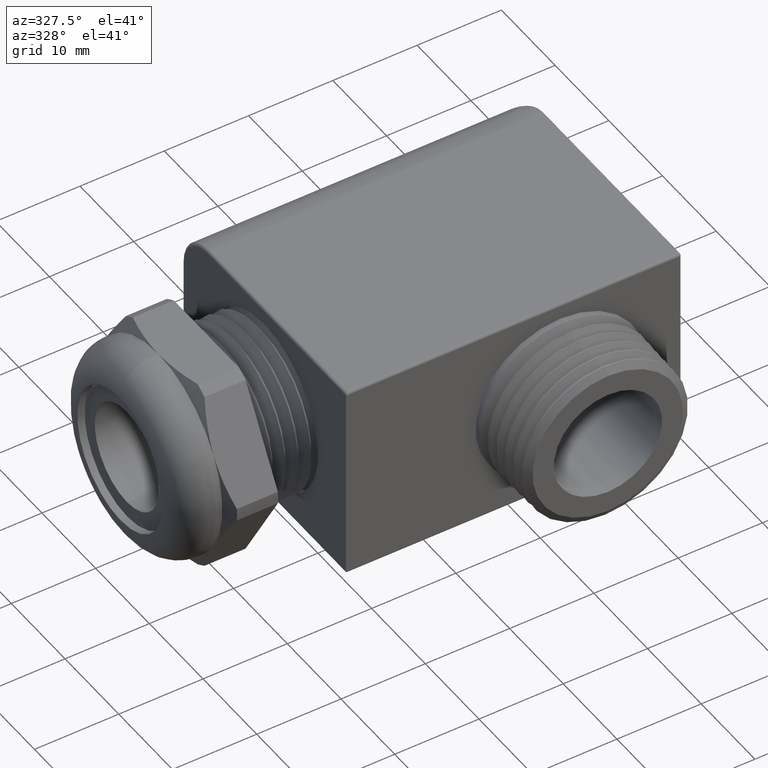
[diagram: clean part render]
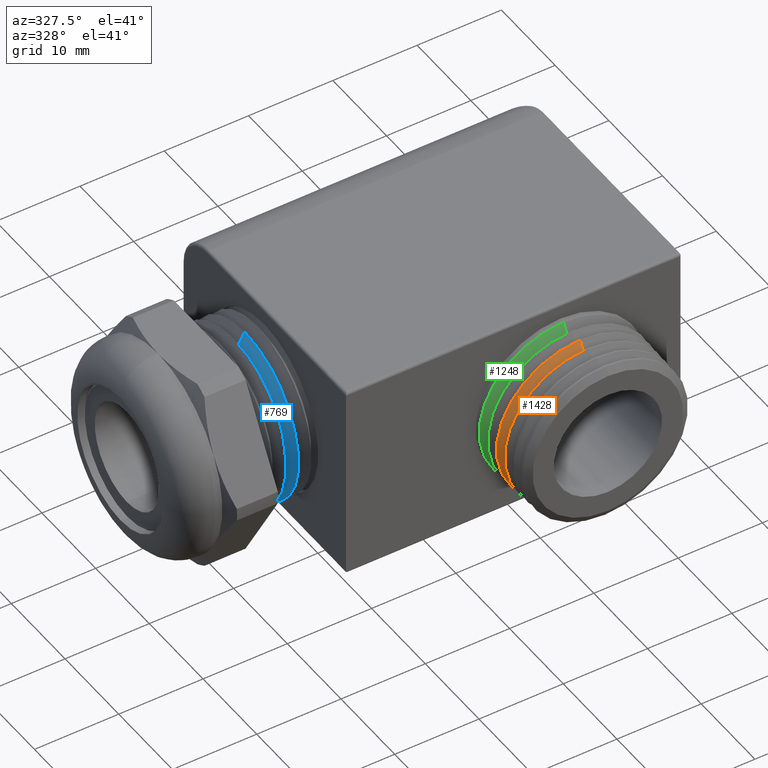
[diagram: same view with three faces highlighted in distinct colors, each labeled with its STEP entity id]
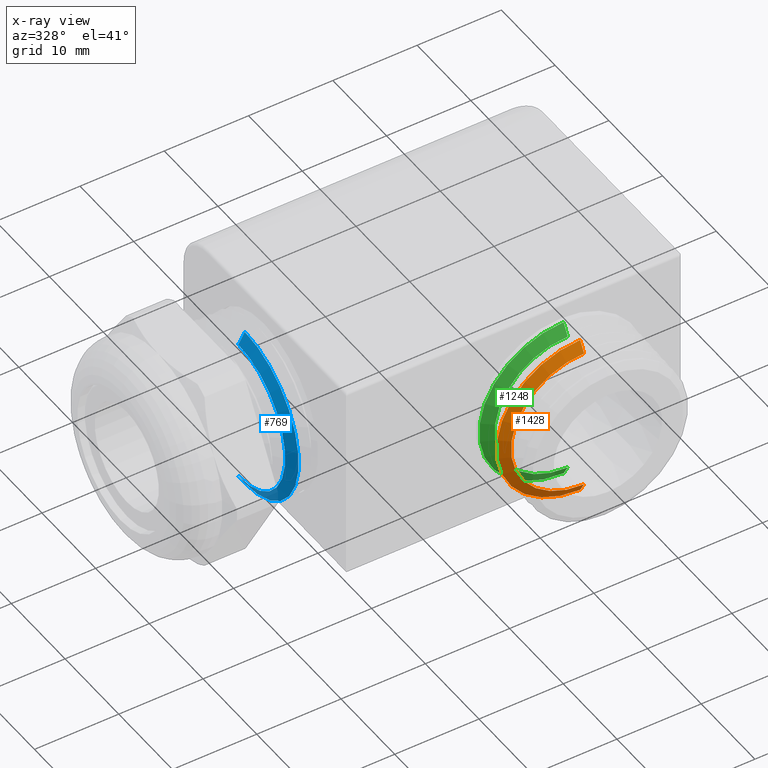
[diagram: x-ray of the same camera — body ghosted, the three highlighted faces saturated]
A machine part, auxiliary view with three faces highlighted in distinct colors.
The next image is the same camera in x-ray (body ghosted, the three faces saturated) — at least one of them is partly hidden behind the body in this view.
Their STEP definitions:

[orange] entity #1428 — the highlighted conical surface has half-angle 60 deg.
#813 = EDGE_CURVE ( 'NONE', #834, #817, #3018, .T. ) ;
#816 = VERTEX_POINT ( 'NONE', #3104 ) ;
#817 = VERTEX_POINT ( 'NONE', #3103 ) ;
#818 = VERTEX_POINT ( 'NONE', #3102 ) ;
#834 = VERTEX_POINT ( 'NONE', #3084 ) ;
#911 = EDGE_CURVE ( 'NONE', #817, #816, #3166, .T. ) ;
#967 = EDGE_CURVE ( 'NONE', #818, #816, #3322, .T. ) ;
#1408 = ORIENTED_EDGE ( 'NONE', *, *, #967, .F. ) ;
#1409 = ORIENTED_EDGE ( 'NONE', *, *, #1439, .T. ) ;
#1421 = EDGE_LOOP ( 'NONE', ( #1408, #1409, #1440, #1423 ) ) ;
#1423 = ORIENTED_EDGE ( 'NONE', *, *, #911, .T. ) ;
#1428 = ADVANCED_FACE ( 'NONE', ( #4010 ), #3979, .T. ) ;
#1439 = EDGE_CURVE ( 'NONE', #818, #834, #3969, .T. ) ;
#1440 = ORIENTED_EDGE ( 'NONE', *, *, #813, .T. ) ;
#3018 = LINE ( 'NONE', #3089, #3088 ) ;
#3084 = CARTESIAN_POINT ( 'NONE',  ( 1.000155367231638300, -0.7756709431788048100, 0.3415681302205366100 ) ) ;
#3088 = VECTOR ( 'NONE', #3105, 39.37007874015748100 ) ;
#3089 = CARTESIAN_POINT ( 'NONE',  ( 1.000155367231638300, -0.7756709431788048100, 0.3415681302205366100 ) ) ;
#3102 = CARTESIAN_POINT ( 'NONE',  ( 1.000155367231638300, -0.7756709431788048100, -0.3415681302205366100 ) ) ;
#3103 = CARTESIAN_POINT ( 'NONE',  ( 1.000155367231638300, -0.7470451331042969900, 0.3911494876774004300 ) ) ;
#3104 = CARTESIAN_POINT ( 'NONE',  ( 1.000155367231638600, -0.7470451331042969900, -0.3911494876774004300 ) ) ;
#3105 = DIRECTION ( 'NONE',  ( 0.0000000000000000000, 0.5000000000000045500, 0.8660254037844360400 ) ) ;
#3162 = DIRECTION ( 'NONE',  ( 0.0000000000000000000, 0.0000000000000000000, 1.000000000000000000 ) ) ;
#3163 = DIRECTION ( 'NONE',  ( 0.0000000000000000000, -1.000000000000000000, 0.0000000000000000000 ) ) ;
#3164 = CARTESIAN_POINT ( 'NONE',  ( 1.000155367231638300, -0.7470451331042969900, 0.0000000000000000000 ) ) ;
#3165 = AXIS2_PLACEMENT_3D ( 'NONE', #3164, #3163, #3162 ) ;
#3166 = CIRCLE ( 'NONE', #3165, 0.3911494876774004300 ) ;
#3322 = LINE ( 'NONE', #3392, #3391 ) ;
#3390 = DIRECTION ( 'NONE',  ( 1.060575238724903700E-016, 0.5000000000000045500, -0.8660254037844360400 ) ) ;
#3391 = VECTOR ( 'NONE', #3390, 39.37007874015748100 ) ;
#3392 = CARTESIAN_POINT ( 'NONE',  ( 1.000155367231638300, -0.7756709431788048100, -0.3415681302205366100 ) ) ;
#3965 = DIRECTION ( 'NONE',  ( 0.0000000000000000000, 0.0000000000000000000, 1.000000000000000000 ) ) ;
#3966 = DIRECTION ( 'NONE',  ( 0.0000000000000000000, 1.000000000000000000, 0.0000000000000000000 ) ) ;
#3967 = CARTESIAN_POINT ( 'NONE',  ( 1.000155367231638300, -0.7756709431788048100, 0.0000000000000000000 ) ) ;
#3968 = AXIS2_PLACEMENT_3D ( 'NONE', #3967, #3966, #3965 ) ;
#3969 = CIRCLE ( 'NONE', #3968, 0.3415681302205366100 ) ;
#3974 = DIRECTION ( 'NONE',  ( 0.0000000000000000000, 0.0000000000000000000, 1.000000000000000000 ) ) ;
#3975 = DIRECTION ( 'NONE',  ( 0.0000000000000000000, 1.000000000000000000, 0.0000000000000000000 ) ) ;
#3976 = CARTESIAN_POINT ( 'NONE',  ( 1.000155367231638300, -0.7756709431788048100, 0.0000000000000000000 ) ) ;
#3977 = AXIS2_PLACEMENT_3D ( 'NONE', #3976, #3975, #3974 ) ;
#3979 = CONICAL_SURFACE ( 'NONE', #3977, 0.3415681302205366100, 1.047197551196592500 ) ;
#4010 = FACE_OUTER_BOUND ( 'NONE', #1421, .T. ) ;

[blue] entity #769 — the highlighted conical surface has half-angle 60 deg.
#536 = ORIENTED_EDGE ( 'NONE', *, *, #770, .F. ) ;
#576 = VERTEX_POINT ( 'NONE', #2661 ) ;
#591 = EDGE_CURVE ( 'NONE', #804, #743, #2569, .T. ) ;
#691 = EDGE_CURVE ( 'NONE', #576, #804, #2799, .T. ) ;
#743 = VERTEX_POINT ( 'NONE', #2948 ) ;
#744 = VERTEX_POINT ( 'NONE', #2947 ) ;
#766 = ORIENTED_EDGE ( 'NONE', *, *, #691, .T. ) ;
#769 = ADVANCED_FACE ( 'NONE', ( #2795 ), #2794, .T. ) ;
#770 = EDGE_CURVE ( 'NONE', #576, #744, #2788, .T. ) ;
#773 = EDGE_LOOP ( 'NONE', ( #774, #536, #766, #775 ) ) ;
#774 = ORIENTED_EDGE ( 'NONE', *, *, #803, .F. ) ;
#775 = ORIENTED_EDGE ( 'NONE', *, *, #591, .T. ) ;
#803 = EDGE_CURVE ( 'NONE', #744, #743, #2869, .T. ) ;
#804 = VERTEX_POINT ( 'NONE', #2864 ) ;
#2566 = DIRECTION ( 'NONE',  ( 0.0000000000000000000, 0.0000000000000000000, 1.000000000000000000 ) ) ;
#2567 = DIRECTION ( 'NONE',  ( -1.000000000000000000, 0.0000000000000000000, 0.0000000000000000000 ) ) ;
#2568 = AXIS2_PLACEMENT_3D ( 'NONE', #2574, #2567, #2566 ) ;
#2569 = CIRCLE ( 'NONE', #2568, 0.3950000000000000200 ) ;
#2574 = CARTESIAN_POINT ( 'NONE',  ( -0.09095792271184900700, 0.0000000000000000000, 0.0000000000000000000 ) ) ;
#2661 = CARTESIAN_POINT ( 'NONE',  ( -0.1209579087243453500, 4.519182433362568700E-017, -0.3430385000000000200 ) ) ;
#2788 = CIRCLE ( 'NONE', #2793, 0.3430385000000000200 ) ;
#2789 = DIRECTION ( 'NONE',  ( 0.0000000000000000000, 0.0000000000000000000, -1.000000000000000000 ) ) ;
#2790 = DIRECTION ( 'NONE',  ( 1.000000000000000000, 0.0000000000000000000, 0.0000000000000000000 ) ) ;
#2791 = CARTESIAN_POINT ( 'NONE',  ( -0.1209579087243453500, 0.0000000000000000000, 0.0000000000000000000 ) ) ;
#2792 = AXIS2_PLACEMENT_3D ( 'NONE', #2791, #2790, #2789 ) ;
#2793 = AXIS2_PLACEMENT_3D ( 'NONE', #2907, #2906, #2905 ) ;
#2794 = CONICAL_SURFACE ( 'NONE', #2792, 0.3430385000000000200, 1.047197551196603200 ) ;
#2795 = FACE_OUTER_BOUND ( 'NONE', #773, .T. ) ;
#2799 = LINE ( 'NONE', #2805, #2843 ) ;
#2805 = CARTESIAN_POINT ( 'NONE',  ( -0.1209579087243453500, 0.0000000000000000000, -0.3430385000000000200 ) ) ;
#2842 = DIRECTION ( 'NONE',  ( 0.4999999999999952800, 0.0000000000000000000, -0.8660254037844412600 ) ) ;
#2843 = VECTOR ( 'NONE', #2842, 39.37007874015748100 ) ;
#2864 = CARTESIAN_POINT ( 'NONE',  ( -0.09095792271184900700, 4.837354856632045600E-017, -0.3950000000000000200 ) ) ;
#2866 = DIRECTION ( 'NONE',  ( 0.4999999999999952800, 1.060575238724910200E-016, 0.8660254037844412600 ) ) ;
#2867 = VECTOR ( 'NONE', #2866, 39.37007874015748100 ) ;
#2868 = CARTESIAN_POINT ( 'NONE',  ( -0.1209579087243453500, 4.201010010093093600E-017, 0.3430385000000000200 ) ) ;
#2869 = LINE ( 'NONE', #2868, #2867 ) ;
#2905 = DIRECTION ( 'NONE',  ( 0.0000000000000000000, 0.0000000000000000000, 1.000000000000000000 ) ) ;
#2906 = DIRECTION ( 'NONE',  ( -1.000000000000000000, 0.0000000000000000000, 0.0000000000000000000 ) ) ;
#2907 = CARTESIAN_POINT ( 'NONE',  ( -0.1209579087243453500, 0.0000000000000000000, 0.0000000000000000000 ) ) ;
#2947 = CARTESIAN_POINT ( 'NONE',  ( -0.1209579087243453500, 0.0000000000000000000, 0.3430385000000000200 ) ) ;
#2948 = CARTESIAN_POINT ( 'NONE',  ( -0.09095792271184900700, 0.0000000000000000000, 0.3950000000000000200 ) ) ;

[green] entity #1248 — the highlighted conical surface has half-angle 60 deg.
#821 = VERTEX_POINT ( 'NONE', #3192 ) ;
#823 = EDGE_CURVE ( 'NONE', #1075, #821, #3187, .T. ) ;
#1054 = EDGE_CURVE ( 'NONE', #1062, #1055, #3545, .T. ) ;
#1055 = VERTEX_POINT ( 'NONE', #3534 ) ;
#1062 = VERTEX_POINT ( 'NONE', #3553 ) ;
#1075 = VERTEX_POINT ( 'NONE', #3565 ) ;
#1248 = ADVANCED_FACE ( 'NONE', ( #3919 ), #3902, .T. ) ;
#1249 = EDGE_LOOP ( 'NONE', ( #1250, #1251, #1253, #1254 ) ) ;
#1250 = ORIENTED_EDGE ( 'NONE', *, *, #1054, .F. ) ;
#1251 = ORIENTED_EDGE ( 'NONE', *, *, #1252, .T. ) ;
#1252 = EDGE_CURVE ( 'NONE', #1062, #1075, #3754, .T. ) ;
#1253 = ORIENTED_EDGE ( 'NONE', *, *, #823, .T. ) ;
#1254 = ORIENTED_EDGE ( 'NONE', *, *, #1363, .F. ) ;
#1363 = EDGE_CURVE ( 'NONE', #1055, #821, #4120, .T. ) ;
#3026 = DIRECTION ( 'NONE',  ( 0.0000000000000000000, 0.5000000000000045500, 0.8660254037844360400 ) ) ;
#3027 = VECTOR ( 'NONE', #3026, 39.37007874015748100 ) ;
#3028 = CARTESIAN_POINT ( 'NONE',  ( 1.000155367231638300, -0.6554709431788048300, 0.3415681302205366100 ) ) ;
#3187 = LINE ( 'NONE', #3028, #3027 ) ;
#3192 = CARTESIAN_POINT ( 'NONE',  ( 1.000155367231638300, -0.6250000000000000000, 0.3943453519607701400 ) ) ;
#3534 = CARTESIAN_POINT ( 'NONE',  ( 1.000155367231638600, -0.6250000000000000000, -0.3943453519607701400 ) ) ;
#3542 = DIRECTION ( 'NONE',  ( 1.060575238724903700E-016, 0.5000000000000045500, -0.8660254037844360400 ) ) ;
#3543 = VECTOR ( 'NONE', #3542, 39.37007874015748100 ) ;
#3544 = CARTESIAN_POINT ( 'NONE',  ( 1.000155367231638300, -0.6554709431788048300, -0.3415681302205366100 ) ) ;
#3545 = LINE ( 'NONE', #3544, #3543 ) ;
#3553 = CARTESIAN_POINT ( 'NONE',  ( 1.000155367231638300, -0.6554709431788048300, -0.3415681302205366100 ) ) ;
#3565 = CARTESIAN_POINT ( 'NONE',  ( 1.000155367231638300, -0.6554709431788048300, 0.3415681302205366100 ) ) ;
#3750 = DIRECTION ( 'NONE',  ( 0.0000000000000000000, 0.0000000000000000000, 1.000000000000000000 ) ) ;
#3751 = DIRECTION ( 'NONE',  ( 0.0000000000000000000, 1.000000000000000000, 0.0000000000000000000 ) ) ;
#3752 = CARTESIAN_POINT ( 'NONE',  ( 1.000155367231638300, -0.6554709431788048300, 0.0000000000000000000 ) ) ;
#3753 = AXIS2_PLACEMENT_3D ( 'NONE', #3752, #3751, #3750 ) ;
#3754 = CIRCLE ( 'NONE', #3753, 0.3415681302205366100 ) ;
#3756 = DIRECTION ( 'NONE',  ( 0.0000000000000000000, 0.0000000000000000000, 1.000000000000000000 ) ) ;
#3757 = DIRECTION ( 'NONE',  ( 0.0000000000000000000, 1.000000000000000000, 0.0000000000000000000 ) ) ;
#3758 = CARTESIAN_POINT ( 'NONE',  ( 1.000155367231638300, -0.6554709431788048300, 0.0000000000000000000 ) ) ;
#3902 = CONICAL_SURFACE ( 'NONE', #3903, 0.3415681302205366100, 1.047197551196592500 ) ;
#3903 = AXIS2_PLACEMENT_3D ( 'NONE', #3758, #3757, #3756 ) ;
#3919 = FACE_OUTER_BOUND ( 'NONE', #1249, .T. ) ;
#3985 = CARTESIAN_POINT ( 'NONE',  ( 1.000155367231638300, -0.6250000000000000000, 0.0000000000000000000 ) ) ;
#4117 = DIRECTION ( 'NONE',  ( 0.0000000000000000000, 0.0000000000000000000, 1.000000000000000000 ) ) ;
#4118 = DIRECTION ( 'NONE',  ( 0.0000000000000000000, 1.000000000000000000, 0.0000000000000000000 ) ) ;
#4119 = AXIS2_PLACEMENT_3D ( 'NONE', #3985, #4118, #4117 ) ;
#4120 = CIRCLE ( 'NONE', #4119, 0.3943453519607701400 ) ;